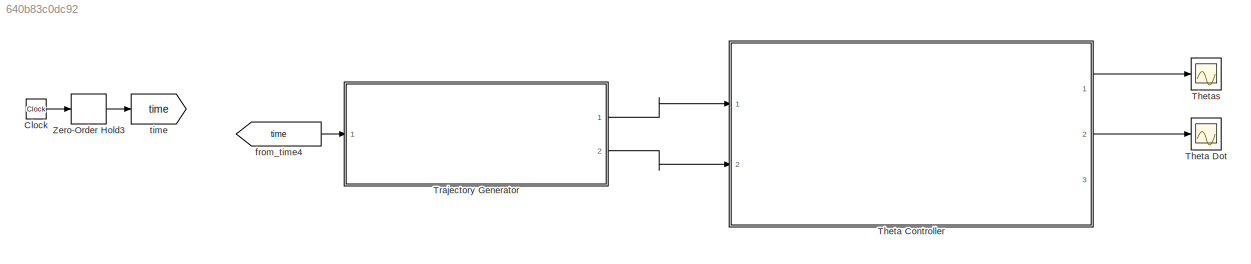
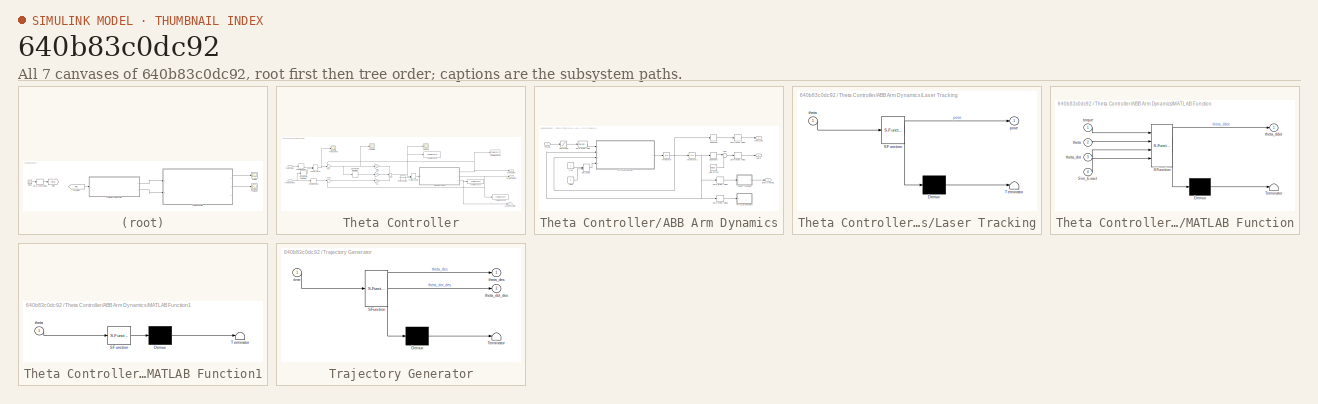
[diagram: thumbnail index - all 7 canvases of the model, root first then tree order]
MODEL slx_640b83c0dc92
KIND model
CONFIG AbsTol = auto
CONFIG EnableMultiTasking = on
CONFIG FixedStep = .001
CONFIG MaxStep = .001
CONFIG MinStep = auto
CONFIG RelTol = 1e-6
CONFIG SampleTimeConstraint = Unconstrained
CONFIG Solver = VariableStepAuto
CONFIG SolverName = VariableStepAuto
CONFIG StartTime = 0.0
CONFIG StopTime = 10
BLOCK [Clock] Clock
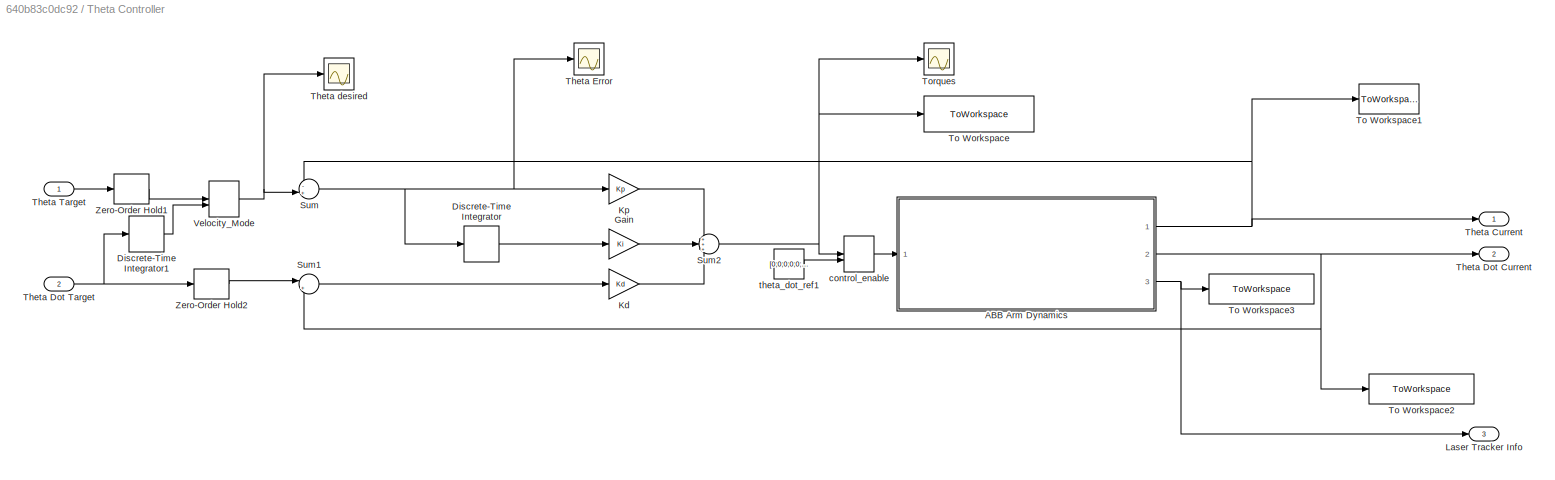
BLOCK [SubSystem] Theta Controller
  Ports = [2, 3]
  RequestExecContextInheritance = off
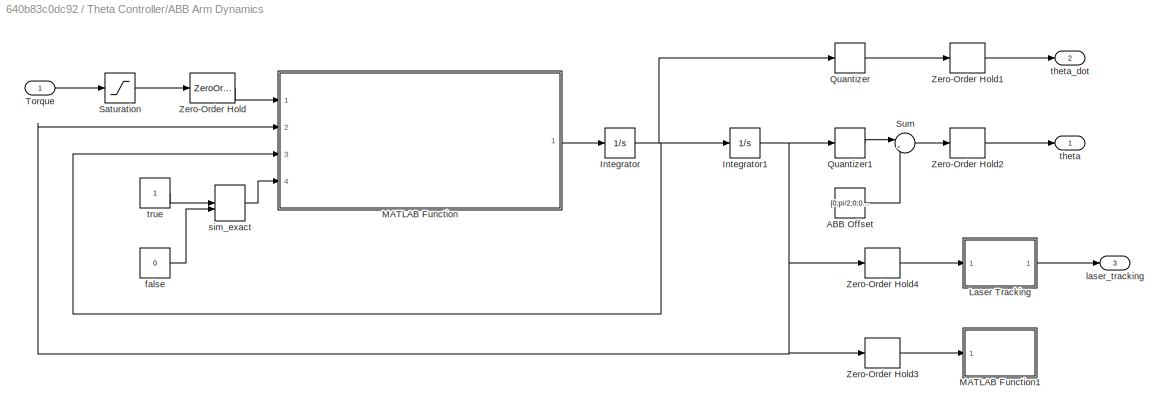
BLOCK [SubSystem] Theta Controller/ABB Arm Dynamics
  Ports = [1, 3]
  RequestExecContextInheritance = off
BLOCK [Constant] Theta Controller/ABB Arm Dynamics/ABB Offset
  Value = [0;pi/2;0;0;0;0]
BLOCK [Integrator] Theta Controller/ABB Arm Dynamics/Integrator
  InitialCondition = zeros(6,1)
  Ports = [1, 1]
BLOCK [Integrator] Theta Controller/ABB Arm Dynamics/Integrator1
  InitialCondition = zeros(6,1)
  Ports = [1, 1]
BLOCK [SubSystem] Theta Controller/ABB Arm Dynamics/Laser Tracking
  ErrorFcn = Stateflow.Translate.translate
  PermitHierarchicalResolution = ExplicitOnly
  Ports = [1, 1]
  RequestExecContextInheritance = off
  SFBlockType = MATLAB Function
  TreatAsAtomicUnit = on
BLOCK [Demux] Theta Controller/ABB Arm Dynamics/Laser Tracking/ Demux 
  Outputs = 1
  Ports = [1, 1]
BLOCK [S-Function] Theta Controller/ABB Arm Dynamics/Laser Tracking/ SFunction 
  EnableBusSupport = on
  FunctionName = sf_sfun
  PortCounts = [1 2]
  Ports = [1, 2]
  SFcnIsStateOwnerBlock = off
  SFunctionDeploymentMode = off
  Tag = Stateflow S-Function 4
BLOCK [Terminator] Theta Controller/ABB Arm Dynamics/Laser Tracking/ Terminator 
BLOCK [Outport] Theta Controller/ABB Arm Dynamics/Laser Tracking/pose
  IconDisplay = Port number
BLOCK [Inport] Theta Controller/ABB Arm Dynamics/Laser Tracking/theta
  IconDisplay = Port number
BLOCK [SubSystem] Theta Controller/ABB Arm Dynamics/MATLAB Function
  ErrorFcn = Stateflow.Translate.translate
  PermitHierarchicalResolution = ExplicitOnly
  Ports = [4, 1]
  RequestExecContextInheritance = off
  SFBlockType = MATLAB Function
  TreatAsAtomicUnit = on
BLOCK [Demux] Theta Controller/ABB Arm Dynamics/MATLAB Function/ Demux 
  Outputs = 1
  Ports = [1, 1]
BLOCK [S-Function] Theta Controller/ABB Arm Dynamics/MATLAB Function/ SFunction 
  EnableBusSupport = on
  FunctionName = sf_sfun
  PortCounts = [4 2]
  Ports = [4, 2]
  SFcnIsStateOwnerBlock = off
  SFunctionDeploymentMode = off
  Tag = Stateflow S-Function 2
BLOCK [Terminator] Theta Controller/ABB Arm Dynamics/MATLAB Function/ Terminator 
BLOCK [Inport] Theta Controller/ABB Arm Dynamics/MATLAB Function/Sim_Exact
  IconDisplay = Port number
  Port = 4
BLOCK [Inport] Theta Controller/ABB Arm Dynamics/MATLAB Function/theta
  IconDisplay = Port number
  Port = 2
BLOCK [Outport] Theta Controller/ABB Arm Dynamics/MATLAB Function/theta_ddot
  IconDisplay = Port number
BLOCK [Inport] Theta Controller/ABB Arm Dynamics/MATLAB Function/theta_dot
  IconDisplay = Port number
  Port = 3
BLOCK [Inport] Theta Controller/ABB Arm Dynamics/MATLAB Function/torque
  IconDisplay = Port number
BLOCK [SubSystem] Theta Controller/ABB Arm Dynamics/MATLAB Function1
  ErrorFcn = Stateflow.Translate.translate
  PermitHierarchicalResolution = ExplicitOnly
  Ports = [1]
  RequestExecContextInheritance = off
  SFBlockType = MATLAB Function
  TreatAsAtomicUnit = on
BLOCK [Demux] Theta Controller/ABB Arm Dynamics/MATLAB Function1/ Demux 
  Outputs = 1
  Ports = [1, 1]
BLOCK [S-Function] Theta Controller/ABB Arm Dynamics/MATLAB Function1/ SFunction 
  EnableBusSupport = on
  FunctionName = sf_sfun
  PortCounts = [1 1]
  Ports = [1, 1]
  SFcnIsStateOwnerBlock = off
  SFunctionDeploymentMode = off
  Tag = Stateflow S-Function 1
BLOCK [Terminator] Theta Controller/ABB Arm Dynamics/MATLAB Function1/ Terminator 
BLOCK [Inport] Theta Controller/ABB Arm Dynamics/MATLAB Function1/theta
  IconDisplay = Port number
BLOCK [Quantizer] Theta Controller/ABB Arm Dynamics/Quantizer
  QuantizationInterval = 1/2^32
BLOCK [Quantizer] Theta Controller/ABB Arm Dynamics/Quantizer1
  QuantizationInterval = 1/2^32
BLOCK [Saturate] Theta Controller/ABB Arm Dynamics/Saturation
  InputPortMap = u0
  LowerLimit = -350
  Ports = [1, 1]
  UpperLimit = 350
BLOCK [Sum] Theta Controller/ABB Arm Dynamics/Sum
  IconShape = round
  InputSameDT = off
  Inputs = |++
  OutDataTypeStr = Inherit: Inherit via internal rule
  Ports = [2, 1]
  SaturateOnIntegerOverflow = off
BLOCK [Inport] Theta Controller/ABB Arm Dynamics/Torque
  IconDisplay = Port number
BLOCK [ZeroOrderHold] Theta Controller/ABB Arm Dynamics/Zero-Order Hold
  SampleTime = 0.001
BLOCK [ZeroOrderHold] Theta Controller/ABB Arm Dynamics/Zero-Order Hold1
  SampleTime = 0.001
BLOCK [ZeroOrderHold] Theta Controller/ABB Arm Dynamics/Zero-Order Hold2
  SampleTime = 0.001
BLOCK [ZeroOrderHold] Theta Controller/ABB Arm Dynamics/Zero-Order Hold3
  SampleTime = .05
BLOCK [ZeroOrderHold] Theta Controller/ABB Arm Dynamics/Zero-Order Hold4
  SampleTime = 0.001
BLOCK [Constant] Theta Controller/ABB Arm Dynamics/false
  Value = 0
BLOCK [Outport] Theta Controller/ABB Arm Dynamics/laser_tracking
  IconDisplay = Port number
  Port = 3
BLOCK [ManualSwitch] Theta Controller/ABB Arm Dynamics/sim_exact
  CurrentSetting = 0
BLOCK [Outport] Theta Controller/ABB Arm Dynamics/theta
  IconDisplay = Port number
BLOCK [Outport] Theta Controller/ABB Arm Dynamics/theta_dot
  IconDisplay = Port number
  Port = 2
BLOCK [Constant] Theta Controller/ABB Arm Dynamics/true
BLOCK [DiscreteIntegrator] Theta Controller/Discrete-Time Integrator
  ICPrevOutput = DiscIntNeverNeededParam
  ICPrevScaledInput = DiscIntNeverNeededParam
  InitialConditionSetting = Auto
  Ports = [1, 1]
  SampleTime = -1
  gainval = 1
BLOCK [DiscreteIntegrator] Theta Controller/Discrete-Time Integrator1
  ICPrevOutput = DiscIntNeverNeededParam
  ICPrevScaledInput = DiscIntNeverNeededParam
  InitialConditionSetting = Auto
  Ports = [1, 1]
  SampleTime = -1
  gainval = 1
BLOCK [Gain] Theta Controller/Gain
  Gain = Ki
  OutDataTypeStr = Inherit: Inherit via internal rule
  ParamDataTypeStr = Inherit: Inherit via internal rule
  SaturateOnIntegerOverflow = off
BLOCK [Gain] Theta Controller/Kd
  Gain = Kd
  OutDataTypeStr = Inherit: Inherit via internal rule
  ParamDataTypeStr = Inherit: Inherit via internal rule
  SaturateOnIntegerOverflow = off
BLOCK [Gain] Theta Controller/Kp
  Gain = Kp
  OutDataTypeStr = Inherit: Inherit via internal rule
  ParamDataTypeStr = Inherit: Inherit via internal rule
  SaturateOnIntegerOverflow = off
BLOCK [Outport] Theta Controller/Laser Tracker Info
  IconDisplay = Port number
  Port = 3
BLOCK [Sum] Theta Controller/Sum
  IconShape = round
  InputSameDT = off
  Inputs = -+|
  OutDataTypeStr = Inherit: Inherit via internal rule
  Ports = [2, 1]
  SaturateOnIntegerOverflow = off
BLOCK [Sum] Theta Controller/Sum1
  IconShape = round
  InputSameDT = off
  Inputs = |+-
  OutDataTypeStr = Inherit: Inherit via internal rule
  Ports = [2, 1]
  SaturateOnIntegerOverflow = off
BLOCK [Sum] Theta Controller/Sum2
  IconShape = round
  InputSameDT = off
  Inputs = +++
  OutDataTypeStr = Inherit: Inherit via internal rule
  Ports = [3, 1]
  SaturateOnIntegerOverflow = off
BLOCK [Outport] Theta Controller/Theta Current
  IconDisplay = Port number
BLOCK [Outport] Theta Controller/Theta Dot Current
  IconDisplay = Port number
  Port = 2
BLOCK [Inport] Theta Controller/Theta Dot Target
  IconDisplay = Port number
  Port = 2
BLOCK [Scope] Theta Controller/Theta Error
  Floating = off
  NumInputPorts = 1
  Ports = [1]
  ScopeSpecificationString = Simulink.scopes.TimeScopeBlockCfg('CurrentConfiguration', extmgr.ConfigurationSet(extmgr.Configuration('Core','General UI',true),extmgr.Configuration('Core','Source UI',true),extmgr.Configuration('Sources','WiredSimulink',true,'DataLoggingVariableName','ScopeData1'),extmgr.Configuration('Visuals','Time Domain',true,'SerializedDisplays',{struct('MinYLimReal','-2.19854','MaxYLimReal','4.54615','YLab...<+1480ch>
BLOCK [Inport] Theta Controller/Theta Target
  IconDisplay = Port number
BLOCK [Scope] Theta Controller/Theta desired
  Floating = off
  NumInputPorts = 1
  Ports = [1]
  ScopeSpecificationString = Simulink.scopes.TimeScopeBlockCfg('CurrentConfiguration', extmgr.ConfigurationSet(extmgr.Configuration('Core','General UI',true),extmgr.Configuration('Core','Source UI',true),extmgr.Configuration('Sources','WiredSimulink',true,'DataLoggingVariableName','ScopeData1'),extmgr.Configuration('Visuals','Time Domain',true,'SerializedDisplays',{struct('MinYLimReal','-2.19854','MaxYLimReal','4.54615','YLab...<+1540ch>
BLOCK [ToWorkspace] Theta Controller/To Workspace
  FixptAsFi = on
  MaxDataPoints = inf
  Ports = [1]
  SampleTime = -1
  SaveFormat = Structure With Time
  VariableName = control_torque
BLOCK [ToWorkspace] Theta Controller/To Workspace1
  FixptAsFi = on
  MaxDataPoints = inf
  Ports = [1]
  SampleTime = -1
  SaveFormat = Structure With Time
  VariableName = theta_actual
BLOCK [ToWorkspace] Theta Controller/To Workspace2
  FixptAsFi = on
  MaxDataPoints = inf
  Ports = [1]
  SampleTime = -1
  SaveFormat = Structure With Time
  VariableName = theta_dot_actual
BLOCK [ToWorkspace] Theta Controller/To Workspace3
  FixptAsFi = on
  MaxDataPoints = inf
  Ports = [1]
  SampleTime = -1
  SaveFormat = Structure With Time
  VariableName = laser_tracking
BLOCK [Scope] Theta Controller/Torques
  Floating = off
  NumInputPorts = 1
  Ports = [1]
  ScopeSpecificationString = Simulink.scopes.TimeScopeBlockCfg('CurrentConfiguration', extmgr.ConfigurationSet(extmgr.Configuration('Core','General UI',true),extmgr.Configuration('Core','Source UI',true),extmgr.Configuration('Sources','WiredSimulink',true,'DataLoggingVariableName','ScopeData1'),extmgr.Configuration('Visuals','Time Domain',true,'SerializedDisplays',{struct('MinYLimReal','-521.19175','MaxYLimReal','392.82302','...<+1475ch>
BLOCK [ManualSwitch] Theta Controller/Velocity_Mode
BLOCK [ZeroOrderHold] Theta Controller/Zero-Order Hold1
  SampleTime = 0.001
BLOCK [ZeroOrderHold] Theta Controller/Zero-Order Hold2
  SampleTime = 0.001
BLOCK [ManualSwitch] Theta Controller/control_enable
BLOCK [Constant] Theta Controller/theta_dot_ref1
  Value = [0;0;0;0;0;0]
BLOCK [Scope] Theta Dot
  Floating = off
  NumInputPorts = 1
  Ports = [1]
  ScopeSpecificationString = Simulink.scopes.TimeScopeBlockCfg('CurrentConfiguration', extmgr.ConfigurationSet(extmgr.Configuration('Core','General UI',true),extmgr.Configuration('Core','Source UI',true),extmgr.Configuration('Sources','WiredSimulink',true,'DataLoggingVariableName','ScopeData3'),extmgr.Configuration('Visuals','Time Domain',true,'SerializedDisplays',{struct('MinYLimReal','-2.19854','MaxYLimReal','4.54615','YLab...<+1544ch>
BLOCK [Scope] Thetas
  Floating = off
  NumInputPorts = 1
  Ports = [1]
  ScopeSpecificationString = Simulink.scopes.TimeScopeBlockCfg('CurrentConfiguration', extmgr.ConfigurationSet(extmgr.Configuration('Core','General UI',true),extmgr.Configuration('Core','Source UI',true),extmgr.Configuration('Sources','WiredSimulink',true,'DataLoggingVariableName','ScopeData2'),extmgr.Configuration('Visuals','Time Domain',true,'SerializedDisplays',{struct('MinYLimReal','-2.19854','MaxYLimReal','4.54615','YLab...<+1595ch>
BLOCK [SubSystem] Trajectory Generator
  ErrorFcn = Stateflow.Translate.translate
  PermitHierarchicalResolution = ExplicitOnly
  Ports = [1, 2]
  RequestExecContextInheritance = off
  SFBlockType = MATLAB Function
  TreatAsAtomicUnit = on
BLOCK [Demux] Trajectory Generator/ Demux 
  Outputs = 1
  Ports = [1, 1]
BLOCK [S-Function] Trajectory Generator/ SFunction 
  EnableBusSupport = on
  FunctionName = sf_sfun
  PortCounts = [1 3]
  Ports = [1, 3]
  SFcnIsStateOwnerBlock = off
  SFunctionDeploymentMode = off
  Tag = Stateflow S-Function 5
BLOCK [Terminator] Trajectory Generator/ Terminator 
BLOCK [Outport] Trajectory Generator/theta_des
  IconDisplay = Port number
BLOCK [Outport] Trajectory Generator/theta_dot_des
  IconDisplay = Port number
  Port = 2
BLOCK [Inport] Trajectory Generator/time
  IconDisplay = Port number
BLOCK [ZeroOrderHold] Zero-Order Hold3
  SampleTime = 0.001
BLOCK [From] from_time4
  GotoTag = time
BLOCK [Goto] time
  GotoTag = time
LINE Clock:1 -> Zero-Order Hold3:1
LINE Theta Controller/ABB Arm Dynamics/ABB Offset:1 -> Theta Controller/ABB Arm Dynamics/Sum:2
NET Theta Controller/ABB Arm Dynamics/Integrator1:1 -> Theta Controller/ABB Arm Dynamics/MATLAB Function:2, Theta Controller/ABB Arm Dynamics/Quantizer1:1, Theta Controller/ABB Arm Dynamics/Zero-Order Hold3:1, Theta Controller/ABB Arm Dynamics/Zero-Order Hold4:1
NET Theta Controller/ABB Arm Dynamics/Integrator:1 -> Theta Controller/ABB Arm Dynamics/Integrator1:1, Theta Controller/ABB Arm Dynamics/MATLAB Function:3, Theta Controller/ABB Arm Dynamics/Quantizer:1
LINE Theta Controller/ABB Arm Dynamics/Laser Tracking:1 -> Theta Controller/ABB Arm Dynamics/laser_tracking:1
LINE Theta Controller/ABB Arm Dynamics/MATLAB Function:1 -> Theta Controller/ABB Arm Dynamics/Integrator:1
LINE Theta Controller/ABB Arm Dynamics/Quantizer1:1 -> Theta Controller/ABB Arm Dynamics/Sum:1
LINE Theta Controller/ABB Arm Dynamics/Quantizer:1 -> Theta Controller/ABB Arm Dynamics/Zero-Order Hold1:1
LINE Theta Controller/ABB Arm Dynamics/Saturation:1 -> Theta Controller/ABB Arm Dynamics/Zero-Order Hold:1
LINE Theta Controller/ABB Arm Dynamics/Sum:1 -> Theta Controller/ABB Arm Dynamics/Zero-Order Hold2:1
LINE Theta Controller/ABB Arm Dynamics/Torque:1 -> Theta Controller/ABB Arm Dynamics/Saturation:1
LINE Theta Controller/ABB Arm Dynamics/Zero-Order Hold1:1 -> Theta Controller/ABB Arm Dynamics/theta_dot:1
LINE Theta Controller/ABB Arm Dynamics/Zero-Order Hold2:1 -> Theta Controller/ABB Arm Dynamics/theta:1
LINE Theta Controller/ABB Arm Dynamics/Zero-Order Hold3:1 -> Theta Controller/ABB Arm Dynamics/MATLAB Function1:1
LINE Theta Controller/ABB Arm Dynamics/Zero-Order Hold4:1 -> Theta Controller/ABB Arm Dynamics/Laser Tracking:1
LINE Theta Controller/ABB Arm Dynamics/Zero-Order Hold:1 -> Theta Controller/ABB Arm Dynamics/MATLAB Function:1
LINE Theta Controller/ABB Arm Dynamics/false:1 -> Theta Controller/ABB Arm Dynamics/sim_exact:2
LINE Theta Controller/ABB Arm Dynamics/sim_exact:1 -> Theta Controller/ABB Arm Dynamics/MATLAB Function:4
LINE Theta Controller/ABB Arm Dynamics/true:1 -> Theta Controller/ABB Arm Dynamics/sim_exact:1
NET Theta Controller/ABB Arm Dynamics:1 -> Theta Controller/Sum:1, Theta Controller/Theta Current:1, Theta Controller/To Workspace1:1
NET Theta Controller/ABB Arm Dynamics:2 -> Theta Controller/Sum1:2, Theta Controller/Theta Dot Current:1, Theta Controller/To Workspace2:1
NET Theta Controller/ABB Arm Dynamics:3 -> Theta Controller/Laser Tracker Info:1, Theta Controller/To Workspace3:1
LINE Theta Controller/Discrete-Time Integrator1:1 -> Theta Controller/Velocity_Mode:2
LINE Theta Controller/Discrete-Time Integrator:1 -> Theta Controller/Gain:1
LINE Theta Controller/Gain:1 -> Theta Controller/Sum2:2
LINE Theta Controller/Kd:1 -> Theta Controller/Sum2:3
LINE Theta Controller/Kp:1 -> Theta Controller/Sum2:1
LINE Theta Controller/Sum1:1 -> Theta Controller/Kd:1
NET Theta Controller/Sum2:1 -> Theta Controller/To Workspace:1, Theta Controller/Torques:1, Theta Controller/control_enable:1
NET Theta Controller/Sum:1 -> Theta Controller/Discrete-Time Integrator:1, Theta Controller/Kp:1, Theta Controller/Theta Error:1
NET Theta Controller/Theta Dot Target:1 -> Theta Controller/Discrete-Time Integrator1:1, Theta Controller/Zero-Order Hold2:1
LINE Theta Controller/Theta Target:1 -> Theta Controller/Zero-Order Hold1:1
NET Theta Controller/Velocity_Mode:1 -> Theta Controller/Sum:2, Theta Controller/Theta desired:1
LINE Theta Controller/Zero-Order Hold1:1 -> Theta Controller/Velocity_Mode:1
LINE Theta Controller/Zero-Order Hold2:1 -> Theta Controller/Sum1:1
LINE Theta Controller/control_enable:1 -> Theta Controller/ABB Arm Dynamics:1
LINE Theta Controller/theta_dot_ref1:1 -> Theta Controller/control_enable:2
LINE Theta Controller:1 -> Thetas:1
LINE Theta Controller:2 -> Theta Dot:1
LINE Trajectory Generator:1 -> Theta Controller:1
LINE Trajectory Generator:2 -> Theta Controller:2
LINE Zero-Order Hold3:1 -> time:1
LINE from_time4:1 -> Trajectory Generator:1
note: NET lines group one-source signal fan-out (src -> all destinations, sorted); 1:1 wires keep LINE
CHART Theta Controller/ABB Arm Dynamics/MATLAB Function1 states=1 transitions=1
  STATE_LABEL 'eML_blk_kernel()'
  STATE_LABEL "SCRIPT:\nfunction drawArm(theta)\n%#codegen\ncoder.extrinsic('evalin');\ncoder.extrinsic('load');\npersistent figNum axisHandel Sim_Exact points3D drawCSM sizeCSM;\n\nif isempty(Sim_Exact)\n    Sim_Exact = evalin('base','Sim_Exact');\n    sizeCSM = 1;\n    sizeCSM = evalin('base','sizeCSM');\n    drawCSM = evalin('base','drawCSM');\n    points3D = zeros(sizeCSM,3,'double');\n    \n    if drawCSM\n        %a.poin...<+3608ch>"
CHART Theta Controller/ABB Arm Dynamics/MATLAB Function states=1 transitions=1
  STATE_LABEL 'eML_blk_kernel()'
  STATE_LABEL 'SCRIPT:\nfunction theta_ddot = fcn(torque, theta, theta_dot, Sim_Exact )\n%#codegen\n\nth1 = theta(1);\nth2 = theta(2);\nth3 = theta(3);\nth4 = theta(4);\nth5 = theta(5);\nth6 = theta(6);\n\nth_dot1 = theta_dot(1);\nth_dot2 = theta_dot(2);\nth_dot3 = theta_dot(3);\nth_dot4 = theta_dot(4);\nth_dot5 = theta_dot(5);\nth_dot6 = theta_dot(6);\n\nCFG = zeros(6,1);\nM = zeros(6,6);\nif Sim_Exact\n    CFG =  CFG_vec_exact(th1...<+3608ch>'
CHART Theta Controller/ABB Arm Dynamics/Laser Tracking states=1 transitions=1
  STATE_LABEL 'eML_blk_kernel()'
  STATE_LABEL "SCRIPT:\nfunction pose = laserTracker(theta)\n%#codegen\ncoder.extrinsic('evalin');\npersistent Sim_Exact;\n\nif isempty(Sim_Exact)\n    Sim_Exact = evalin('base','Sim_Exact');\nend\n\n\nth1 = theta(1);\nth2 = theta(2);\nth3 = theta(3);\nth4 = theta(4);\nth5 = theta(5);\nth6 = theta(6);\n\n\nif(Sim_Exact)\n    pose = [ sin(th6)*(cos(th4)*sin(th1) + sin(th4)*(cos(th1)*sin(th2)*sin(th3) - cos(th1)*cos(th2)*cos(th3))) +...<+3608ch>"
CHART Trajectory Generator states=1 transitions=1
  STATE_LABEL 'eML_blk_kernel()'
  STATE_LABEL "SCRIPT:\nfunction [theta_des, theta_dot_des] = trajectory_gen( time )\n%#codegen\ncoder.extrinsic('evalin');\ncoder.extrinsic('min');\ncoder.extrinsic('length');\n\n\n\npersistent trajectory  traj_length index;\n\nif isempty(trajectory) || time == 0\n    trajectory = evalin('base','trajectory');\n    traj_length = evalin('base','traj_length');\n    index = 1;\nend\n\n\nt_point = 0;% pre allocate for simulink\nt_poin...<+234ch>"
